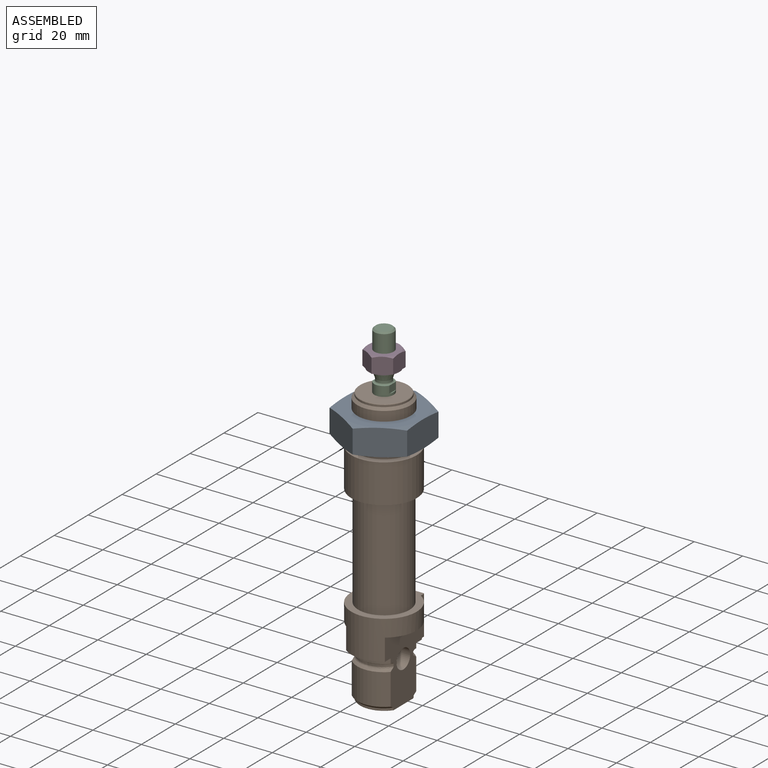
[diagram: assembled view]
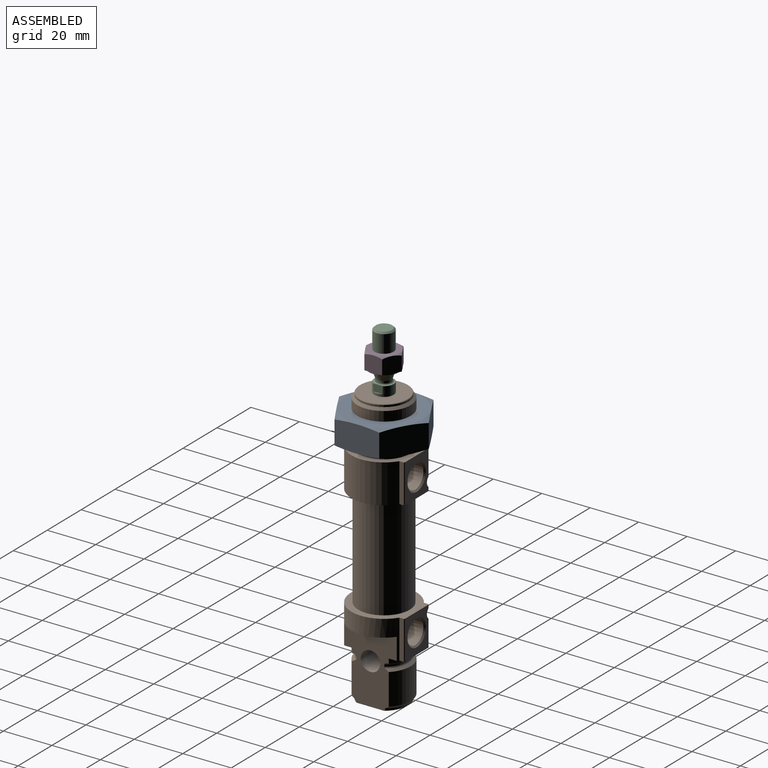
[diagram: assembled view, second angle]
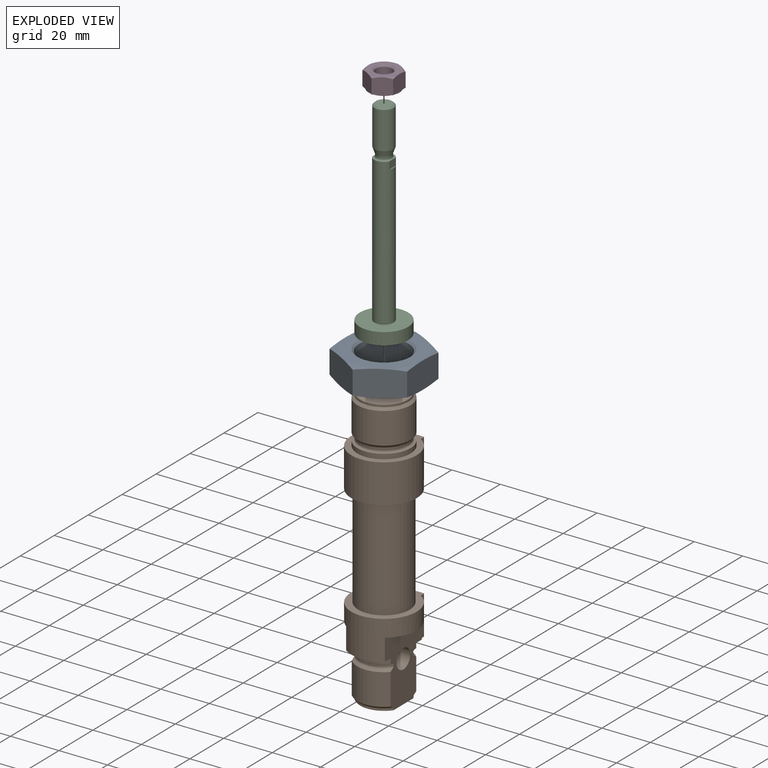
[diagram: exploded view]
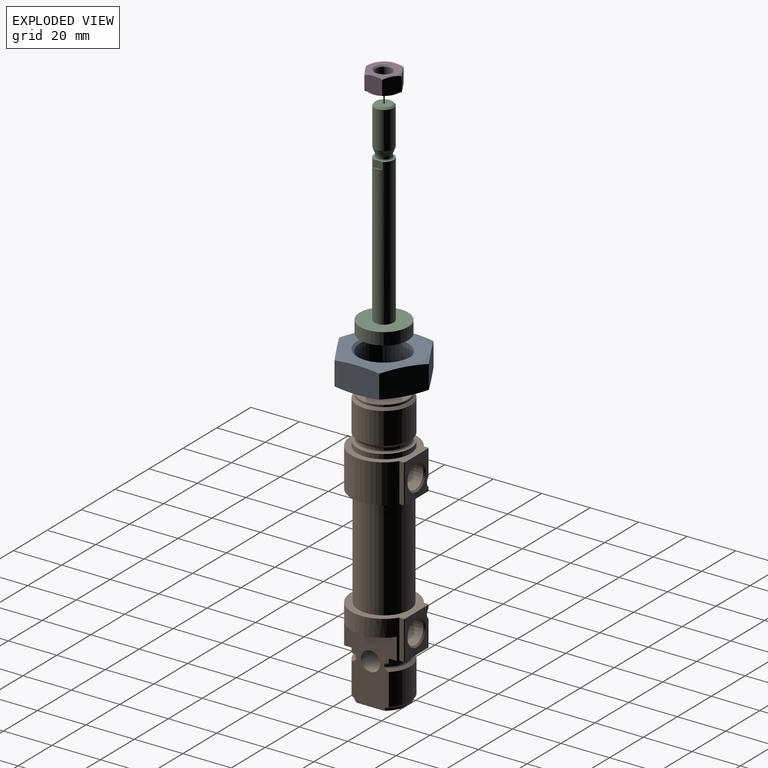
[diagram: exploded view, second angle]
ASSEMBLY  parts=4 mates=3
PART A: 13 faces, bbox 37x11x37 mm
  f0: plane 18.48x10.97mm, normal (-1,0,0), area 194.2mm2, adj f1,f2,f4,f8
  f1: plane 16x10.97mm, normal (-0.5,0,-0.87), area 194.2mm2, adj f0,f2,f8,f12
  f2: cone r=36.48mm half-angle=75deg, axis (0,1,0), area 90.7mm2, adj f0,f1,f3,f4,f5,f6,f12
  f3: plane 18.48x10.97mm, normal (1,0,0), area 194.3mm2, adj f2,f6,f8,f12
  f4: plane 16x10.97mm, normal (-0.5,0,0.87), area 194.2mm2, adj f0,f2,f6,f8
  f5: plane 31.9x31.9mm, normal (0,-1,0), area 419.1mm2, adj f2,f9
  f6: plane 16x10.97mm, normal (0.5,0,0.87), area 194.3mm2, adj f2,f3,f4,f8
  f7: plane 31.9x31.9mm, normal (0,1,0), area 419.1mm2, adj f8,f11
  f8: cone r=15.95mm half-angle=75deg, axis (0,-1,0), area 90.7mm2, adj f0,f1,f3,f4,f6,f7,f12
  f9: cone r=10.19mm half-angle=45deg, axis (0,-1,0), area 76.4mm2, adj f5,f10
  f10: cylinder r=10.19mm len=20.38mm, axis (0,1,0), area 600.2mm2, adj f9,f11
  f11: cone r=11mm half-angle=45deg, axis (0,1,0), area 76.4mm2, adj f7,f10
  f12: plane 16x10.97mm, normal (0.5,0,-0.87), area 194.2mm2, adj f1,f2,f3,f8
PART B: 96 faces, bbox 114.6x27.3x27.3 mm
  f0: cylinder r=4mm len=20.23mm, axis (-1,0,0), area 473.3mm2, adj f6,f94
  f1: cone r=4.82mm half-angle=45deg, axis (0,1,0), area 29mm2, adj f2,f23
  f2: cone r=4.15mm half-angle=1.8deg, axis (0,1,0), area 607.7mm2, adj f1,f3
  f3: plane 8.29x8.29mm, normal (0,1,0), area 54mm2, adj f2
  f4: cone r=4.82mm half-angle=45deg, axis (0,1,0), area 29mm2, adj f6,f35
  f5: plane 8.27x8.27mm, normal (0,1,0), area 53.8mm2, adj f6
  f6: cone r=4.14mm half-angle=1.8deg, axis (0,1,0), area 498.5mm2, adj f0,f4,f5,f95
  f7: cylinder r=13.5mm len=27mm, axis (1,0,0), area 631.7mm2, adj f8,f22,f26,f53,f54,f59,f63,f64
  f8: plane 29.29x22.04mm, normal (0,0,1), area 434.4mm2, adj f7,f9,f10,f11,f12,f13,f14,f63
  f9: torus R=10.65mm, axis (1,0,0), area 11.6mm2, adj f8,f65,f77,f80
  f10: torus R=10.65mm, axis (1,0,0), area 22.9mm2, adj f8,f65,f71,f77
  f11: cone r=11mm half-angle=45deg, axis (-1,0,0), area 25.8mm2, adj f8,f12,f65,f82
  f12: cylinder r=11mm len=16mm, axis (-1,0,0), area 232mm2, adj f8,f11,f65,f80
  f13: cylinder r=11mm len=16mm, axis (-1,0,0), area 232mm2, adj f8,f14,f65,f81
  f14: cone r=10.08mm half-angle=45deg, axis (1,0,0), area 23.6mm2, adj f8,f13,f65,f79
  f15: plane 3.86x1.01mm, normal (-1,0,0), area 3.7mm2, adj f17,f18,f61,f62
  f16: plane 3.86x1.01mm, normal (1,0,0), area 3.7mm2, adj f19,f21,f61,f62
  f17: plane 3.04x1.25mm, normal (0,1,0), area 2.8mm2, adj f15,f18
  f18: cone r=1.95mm half-angle=45deg, axis (0,-1,0), area 2.8mm2, adj f15,f17,f61
  f19: plane 3.04x1.25mm, normal (0,1,0), area 2.8mm2, adj f16,f21
  f20: cylinder r=0.4mm len=1.42mm, axis (1,0,0), area 0.8mm2, adj f22,f23,f50,f59
  f21: cone r=1.95mm half-angle=45deg, axis (0,-1,0), area 2.8mm2, adj f16,f19,f61
  f22: cylinder r=2.5mm len=6.7mm, axis (0,1,0), area 62.2mm2, adj f7,f20,f23,f50,f51,f52,f53,f54
  f23: plane 16x13.7mm, normal (0,1,0), area 123.5mm2, adj f1,f20,f22,f24,f52,f59,f73
  f24: cylinder r=0.4mm len=16mm, axis (1,0,0), area 10.1mm2, adj f23,f25,f59,f73
  f25: plane 16x1.55mm, normal (0,0,1), area 24.8mm2, adj f24,f26,f59,f73
  f26: cylinder r=0.3mm len=16mm, axis (1,0,0), area 4.8mm2, adj f7,f25,f59,f73
  f27: cylinder r=10.65mm len=42.35mm, axis (-1,0,0), area 2833.9mm2, adj f59,f84
  f28: plane 3.9x0.6mm, normal (0,1,0), area 2.3mm2, adj f29,f31,f58
  f29: plane 3.86x1.01mm, normal (-1,0,0), area 3.7mm2, adj f28,f30,f31,f57
  f30: cone r=1.95mm half-angle=45deg, axis (0,-1,0), area 2.8mm2, adj f29,f31,f57
  f31: cylinder r=1.95mm len=3.9mm, axis (0,1,0), area 4.4mm2, adj f28,f29,f30,f32,f55,f58
  f32: plane 5x5mm, normal (0,1,0), area 7.7mm2, adj f31,f33
  f33: cylinder r=2.5mm len=6.7mm, axis (0,1,0), area 62.2mm2, adj f32,f34,f35,f86,f87,f88,f89,f90
  f34: cylinder r=0.4mm len=10.62mm, axis (1,0,0), area 6.6mm2, adj f33,f35,f85,f90
  f35: plane 16x13.7mm, normal (0,1,0), area 123.5mm2, adj f4,f33,f34,f36,f84,f85,f91
  f36: cylinder r=0.4mm len=16mm, axis (1,0,0), area 10.1mm2, adj f35,f37,f84,f85
  f37: plane 16x1.55mm, normal (0,0,1), area 24.8mm2, adj f36,f38,f84,f85
  f38: cylinder r=0.3mm len=16mm, axis (1,0,0), area 4.8mm2, adj f37,f84,f85,f86
  f39: cylinder r=11mm len=22mm, axis (-1,0,0), area 138.2mm2, adj f40,f85
  f40: plane 22x22mm, normal (-1,0,0), area 23.8mm2, adj f39,f41
  f41: torus R=10.65mm, axis (1,0,0), area 80.1mm2, adj f40,f42
  f42: cylinder r=9.85mm len=19.7mm, axis (-1,0,0), area 47.6mm2, adj f41,f43
  f43: torus R=10.65mm, axis (1,0,0), area 39.2mm2, adj f42,f44
  f44: cone r=11mm half-angle=45deg, axis (-1,0,0), area 85.8mm2, adj f43,f45
  f45: cylinder r=11mm len=22mm, axis (-1,0,0), area 895mm2, adj f44,f46
  f46: cone r=10mm half-angle=45deg, axis (1,0,0), area 93.3mm2, adj f45,f47
  f47: cylinder r=10mm len=20mm, axis (-1,0,0), area 50.3mm2, adj f46,f48
  f48: cone r=9.8mm half-angle=45deg, axis (1,0,0), area 17.6mm2, adj f47,f49
  f49: plane 19.6x19.6mm, normal (-1,0,0), area 251.5mm2, adj f48,f95
  f50: plane 1.55x1.14mm, normal (0,0,-1), area 1.8mm2, adj f20,f22,f53,f59
  f51: plane 10.54x1.55mm, normal (0,0,-1), area 16.3mm2, adj f22,f52,f54,f73
  f52: cylinder r=0.4mm len=10.82mm, axis (1,0,0), area 6.7mm2, adj f22,f23,f51,f73
  f53: cylinder r=0.3mm len=1.14mm, axis (1,0,0), area 0.3mm2, adj f7,f22,f50,f59
  f54: cylinder r=0.3mm len=10.54mm, axis (1,0,0), area 3.1mm2, adj f7,f22,f51,f73
  f55: cone r=1.95mm half-angle=45deg, axis (0,-1,0), area 2.8mm2, adj f31,f56,f58
  f56: plane 3.04x1.25mm, normal (0,1,0), area 2.8mm2, adj f55,f58
  f57: plane 3.04x1.25mm, normal (0,1,0), area 2.8mm2, adj f29,f30
  f58: plane 3.86x1.01mm, normal (1,0,0), area 3.7mm2, adj f28,f31,f55,f56
  f59: plane 27x27mm, normal (-1,0,0), area 226mm2, adj f7,f20,f23,f24,f25,f26,f27,f50
  f60: plane 5x5mm, normal (0,1,0), area 7.7mm2, adj f22,f61
  f61: cylinder r=1.95mm len=3.9mm, axis (0,1,0), area 4.4mm2, adj f15,f16,f18,f21,f60,f62
  f62: plane 3.9x0.6mm, normal (0,1,0), area 2.3mm2, adj f15,f16,f61
  f63: plane 21.75x5.5mm, normal (1,0,0), area 83.7mm2, adj f7,f8
  f64: plane 21.75x5.5mm, normal (1,0,0), area 83.7mm2, adj f7,f65
  f65: plane 29.29x22.04mm, normal (0,0,-1), area 434.4mm2, adj f7,f9,f10,f11,f12,f13,f14,f64
  f66: cylinder r=4mm len=16mm, axis (0,0,1), area 402.1mm2, adj f8,f65
  f67: plane 19.6x16mm, normal (1,0,0), area 274mm2, adj f8,f65,f68,f69
  f68: cone r=10mm half-angle=45deg, axis (-1,0,0), area 5.3mm2, adj f8,f65,f67,f83
  f69: cone r=10mm half-angle=45deg, axis (-1,0,0), area 5.3mm2, adj f8,f65,f67,f82
  f70: cylinder r=11mm len=16mm, axis (-1,0,0), area 35.8mm2, adj f8,f65,f73,f75
  f71: plane 16x3.97mm, normal (1,0,0), area 6.3mm2, adj f8,f10,f65,f72
  f72: cylinder r=11mm len=16mm, axis (-1,0,0), area 35.8mm2, adj f8,f65,f71,f74
  f73: plane 16x5.95mm, normal (1,0,0), area 53.5mm2, adj f7,f8,f23,f24,f25,f26,f51,f52
  f74: plane 16x5.95mm, normal (1,0,0), area 43.7mm2, adj f7,f8,f65,f72
  f75: plane 16x3.97mm, normal (1,0,0), area 6.3mm2, adj f8,f65,f70,f76
  f76: torus R=10.65mm, axis (1,0,0), area 22.9mm2, adj f8,f65,f75,f78
  f77: cylinder r=9.85mm len=16mm, axis (-1,0,0), area 14.4mm2, adj f8,f9,f10,f65
  f78: cylinder r=9.85mm len=16mm, axis (-1,0,0), area 14.4mm2, adj f8,f65,f76,f79
  f79: torus R=10.65mm, axis (1,0,0), area 11.6mm2, adj f8,f14,f65,f78
  f80: cone r=10.08mm half-angle=45deg, axis (1,0,0), area 23.6mm2, adj f8,f9,f12,f65
  f81: cone r=11mm half-angle=45deg, axis (-1,0,0), area 25.8mm2, adj f8,f13,f65,f83
  f82: cylinder r=10mm len=16mm, axis (-1,0,0), area 14.8mm2, adj f8,f11,f65,f69
  f83: cylinder r=10mm len=16mm, axis (-1,0,0), area 14.8mm2, adj f8,f65,f68,f81
  f84: plane 27x27mm, normal (1,0,0), area 226mm2, adj f27,f35,f36,f37,f38,f86,f88,f89
  f85: plane 27x27mm, normal (-1,0,0), area 202.2mm2, adj f34,f35,f36,f37,f38,f39,f86,f87
  f86: cylinder r=13.5mm len=27mm, axis (1,0,0), area 1086.8mm2, adj f33,f38,f84,f85,f87,f88
  f87: cylinder r=0.3mm len=10.34mm, axis (1,0,0), area 3.1mm2, adj f33,f85,f86,f90
  f88: cylinder r=0.3mm len=1.34mm, axis (1,0,0), area 0.4mm2, adj f33,f84,f86,f89
  f89: plane 1.55x1.34mm, normal (0,0,-1), area 2.1mm2, adj f33,f84,f88,f91
  f90: plane 10.34x1.55mm, normal (0,0,-1), area 16mm2, adj f33,f34,f85,f87
  f91: cylinder r=0.4mm len=1.62mm, axis (1,0,0), area 0.9mm2, adj f33,f35,f84,f89
  f92: plane 20x20mm, normal (-1,0,0), area 314.2mm2, adj f93
  f93: cylinder r=10mm len=20mm, axis (-1,0,0), area 713.1mm2, adj f92,f94
  f94: plane 20x20mm, normal (1,0,0), area 263.9mm2, adj f0,f93
  f95: cylinder r=4mm len=26.33mm, axis (-1,0,0), area 625.9mm2, adj f6,f49
PART C: 17 faces, bbox 20.1x20.1x85.8 mm
  f0: plane 3.87x3.02mm, normal (1,0,0), area 11.6mm2, adj f3,f4,f5,f15,f16
  f1: plane 4.01x3.16mm, normal (-1,0,0), area 11.6mm2, adj f2,f3,f4,f5,f15
  f2: plane 3.87x0.5mm, normal (0,0,1), area 1.3mm2, adj f1,f15
  f3: plane 7x2.96mm, normal (0,0,1), area 3.1mm2, adj f0,f1,f5,f15
  f4: plane 7x2.96mm, normal (0,0,1), area 3.1mm2, adj f0,f1,f5,f15
  f5: torus R=3.65mm, axis (0,0,-1), area 19mm2, adj f0,f1,f3,f4,f6
  f6: cylinder r=3.05mm len=6.1mm, axis (0,0,1), area 15.2mm2, adj f5,f7
  f7: torus R=3.65mm, axis (0,0,-1), area 4mm2, adj f6,f8
  f8: cone r=3.97mm half-angle=20deg, axis (0,0,1), area 57.2mm2, adj f7,f9
  f9: cylinder r=3.97mm len=15.35mm, axis (0,0,1), area 382.7mm2, adj f8,f10
  f10: cone r=3.34mm half-angle=45deg, axis (0,0,-1), area 20.5mm2, adj f9,f11
  f11: plane 6.68x6.68mm, normal (0,0,1), area 35mm2, adj f10
  f12: plane 20x20mm, normal (0,0,-1), area 314.2mm2, adj f13
  f13: cylinder r=10mm len=20mm, axis (0,0,1), area 314.2mm2, adj f12,f14
  f14: plane 20x20mm, normal (0,0,1), area 263.9mm2, adj f13,f15
  f15: cylinder r=4mm len=60.65mm, axis (0,0,1), area 1500mm2, adj f0,f1,f2,f3,f4,f14,f16
  f16: plane 3.87x0.5mm, normal (0,0,1), area 1.3mm2, adj f0,f15
PART D: 29 faces, bbox 6.9x14.7x14.7 mm
  f0: plane 6.93x6.35mm, normal (0,-0.87,0.5), area 46.5mm2, adj f1,f2,f5,f12,f14,f16,f18,f24
  f1: plane 12.7x12.7mm, normal (1,0,0), area 77.2mm2, adj f0,f2,f3,f4,f5,f8,f20,f21
  f2: cone r=7.62mm half-angle=60deg, axis (-1,0,0), area 2.5mm2, adj f0,f1,f26
  f3: plane 6.93x6.35mm, normal (0,0.87,-0.5), area 46.5mm2, adj f1,f4,f9,f11,f14,f19,f20,f22
  f4: plane 7.33x6.93mm, normal (0,0,-1), area 46.5mm2, adj f1,f3,f9,f10,f13,f14,f19,f22
  f5: plane 7.33x6.93mm, normal (0,0,1), area 46.5mm2, adj f0,f1,f12,f14,f15,f16,f17,f21
  f6: cone r=3.97mm half-angle=45deg, axis (-1,0,0), area 18.7mm2, adj f7,f14
  f7: cylinder r=3.4mm len=6.79mm, axis (-1,0,0), area 123.5mm2, adj f6,f8
  f8: cone r=3.4mm half-angle=45deg, axis (1,0,0), area 18.7mm2, adj f1,f7
  f9: plane 5.33x3.08mm, normal (-1,0,0), area 2.2mm2, adj f3,f4,f19
  f10: plane 5.33x3.08mm, normal (-1,0,0), area 2.2mm2, adj f4,f13,f26
  f11: plane 6.15x1.78mm, normal (-1,0,0), area 2.2mm2, adj f3,f25,f27
  f12: plane 5.33x3.08mm, normal (-1,0,0), area 2.2mm2, adj f0,f5,f16
  f13: cylinder r=6.35mm len=5.33mm, axis (-1,0,0), area 2.6mm2, adj f4,f10,f14,f26
  f14: plane 12.7x12.7mm, normal (-1,0,0), area 77.2mm2, adj f0,f3,f4,f5,f6,f13,f15,f16
  f15: cylinder r=6.35mm len=5.33mm, axis (-1,0,0), area 2.6mm2, adj f5,f14,f17,f25
  f16: cylinder r=6.35mm len=5.33mm, axis (-1,0,0), area 2.6mm2, adj f0,f5,f12,f14
  f17: plane 5.33x3.08mm, normal (-1,0,0), area 2.2mm2, adj f5,f15,f25
  f18: cylinder r=6.35mm len=6.15mm, axis (-1,0,0), area 2.6mm2, adj f0,f14,f26,f28
  f19: cylinder r=6.35mm len=5.33mm, axis (-1,0,0), area 2.6mm2, adj f3,f4,f9,f14
  f20: cone r=7.62mm half-angle=60deg, axis (-1,0,0), area 2.5mm2, adj f1,f3,f25
  f21: cone r=7.62mm half-angle=60deg, axis (-1,0,0), area 2.5mm2, adj f1,f5,f25
  f22: cone r=7.62mm half-angle=60deg, axis (-1,0,0), area 2.5mm2, adj f1,f3,f4
  f23: cone r=7.62mm half-angle=60deg, axis (-1,0,0), area 2.5mm2, adj f1,f4,f26
  f24: cone r=7.62mm half-angle=60deg, axis (-1,0,0), area 2.5mm2, adj f0,f1,f5
  f25: plane 6.93x6.35mm, normal (0,0.87,0.5), area 46.5mm2, adj f1,f3,f5,f11,f14,f15,f17,f20
  f26: plane 6.93x6.35mm, normal (0,-0.87,-0.5), area 46.5mm2, adj f0,f1,f2,f4,f10,f13,f14,f18
  f27: cylinder r=6.35mm len=6.15mm, axis (-1,0,0), area 2.6mm2, adj f3,f11,f14,f25
  f28: plane 6.15x1.78mm, normal (-1,0,0), area 2.2mm2, adj f0,f18,f26
PLACE A rot(axis=(0,0.71,0.71),180deg) t=(-31.15,-6.8,-2.07)mm
PLACE B rot(axis=(0,1,0),90deg) t=(-31.15,-6.8,3.89)mm fixed
PLACE C rot(axis=(0,0,1),180deg) t=(-31.15,-6.8,3.89)mm
PLACE D rot(axis=(0.71,0,0.71),180deg) t=(-31.15,-6.8,13.02)mm
MATE slider C.f5 <-> B.f7  axis (0,0,1) through (-31.15,-6.8,27.89)mm
MATE fastened D.f2 <-> C.f5  axis (0,0,1) through (-31.15,-6.8,19.96)mm
MATE fastened B.f7 <-> A.f2  axis (0,0,1) through (-31.15,-6.8,-16.11)mm
